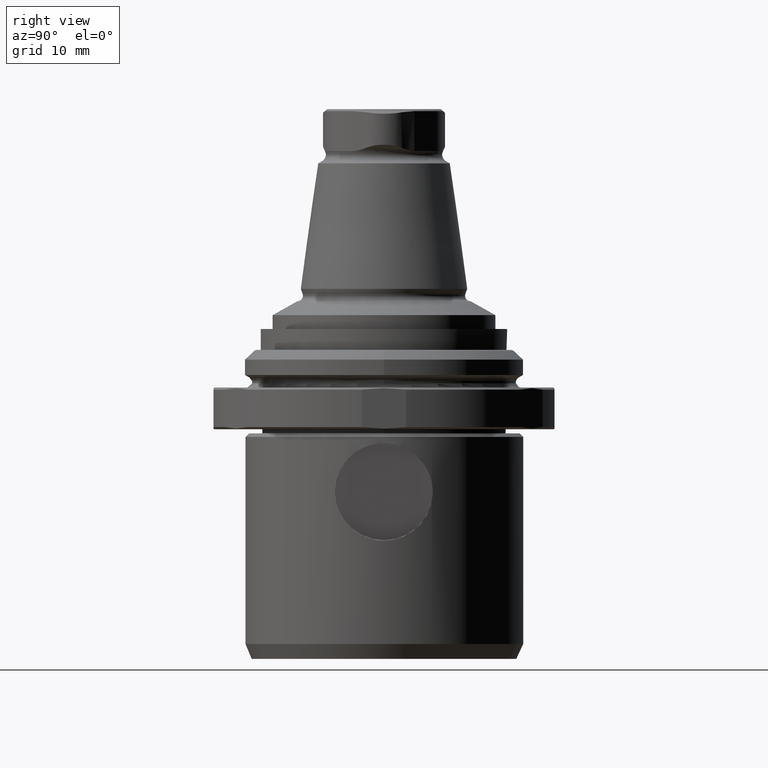
[diagram: clean part render]
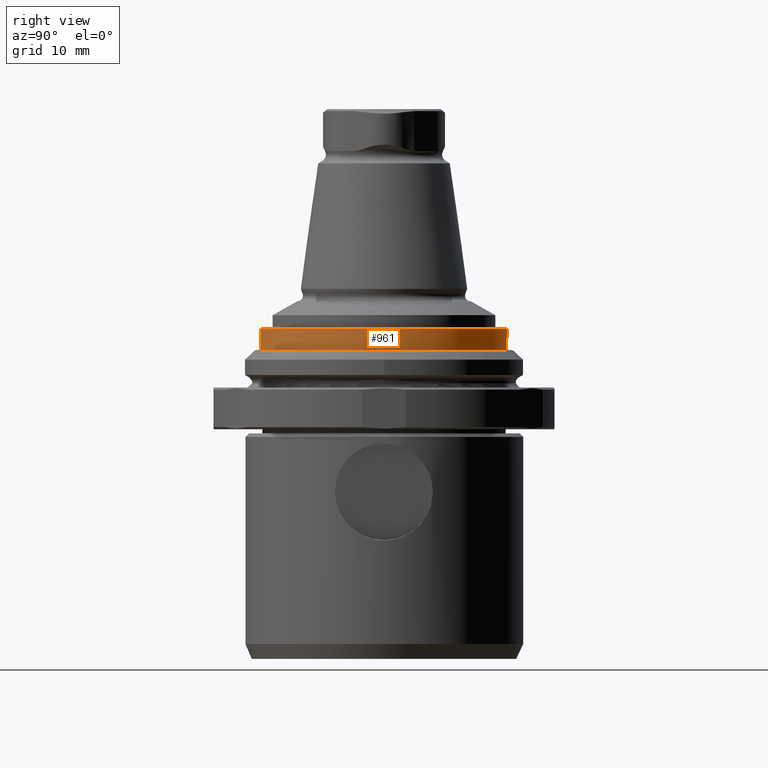
[diagram: same view with one face highlighted and labeled with its STEP entity id]
A machine part, right view. The second image highlights one B-rep face of the part: STEP entity #961.
In plain terms, the highlighted cylindrical surface (bore or boss wall) has radius 17.7 mm, axis along (0, -0, -1).
Its self-contained STEP definition (entity closure, byte-faithful):
#135=CYLINDRICAL_SURFACE('',#1078,17.7);
#301=ORIENTED_EDGE('',*,*,#494,.T.);
#302=ORIENTED_EDGE('',*,*,#491,.F.);
#491=EDGE_CURVE('',#603,#603,#679,.T.);
#494=EDGE_CURVE('',#606,#606,#682,.T.);
#603=VERTEX_POINT('',#1655);
#606=VERTEX_POINT('',#1663);
#679=CIRCLE('',#1074,17.7);
#682=CIRCLE('',#1079,17.7);
#759=EDGE_LOOP('',(#301));
#760=EDGE_LOOP('',(#302));
#861=FACE_BOUND('',#759,.T.);
#862=FACE_BOUND('',#760,.T.);
#961=ADVANCED_FACE('',(#861,#862),#135,.T.);
#1074=AXIS2_PLACEMENT_3D('',#1654,#1284,#1285);
#1078=AXIS2_PLACEMENT_3D('',#1661,#1292,#1293);
#1079=AXIS2_PLACEMENT_3D('',#1662,#1294,#1295);
#1284=DIRECTION('',(-1.1985897436163E-16,2.28605420901113E-16,1.));
#1285=DIRECTION('',(-6.68722135205411E-17,1.,-2.28605420901114E-16));
#1292=DIRECTION('',(1.1985897436163E-16,-2.28605420901113E-16,-1.));
#1293=DIRECTION('',(1.,6.12343622236165E-17,1.1985897436163E-16));
#1294=DIRECTION('',(-1.1985897436163E-16,2.28605420901113E-16,1.));
#1295=DIRECTION('',(6.68722135205411E-17,-1.,2.28605420901114E-16));
#1654=CARTESIAN_POINT('',(5.49600075093802E-16,-4.81482486096809E-32,-2.5937822173509));
#1655=CARTESIAN_POINT('',(-6.34038104219775E-16,17.7,-2.5937822173509));
#1661=CARTESIAN_POINT('',(7.29388536636248E-16,-3.4290813135167E-16,-4.0937822173509));
#1662=CARTESIAN_POINT('',(9.09176998178694E-16,-6.8581626270334E-16,-5.5937822173509));
#1663=CARTESIAN_POINT('',(2.09281517749227E-15,-17.7,-5.59378221735089));